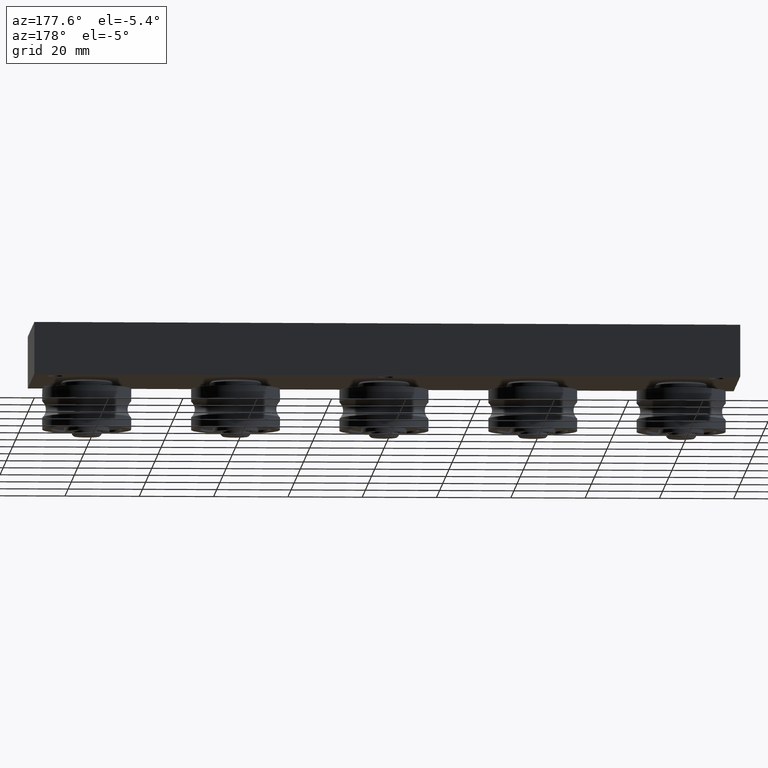
[diagram: clean part render]
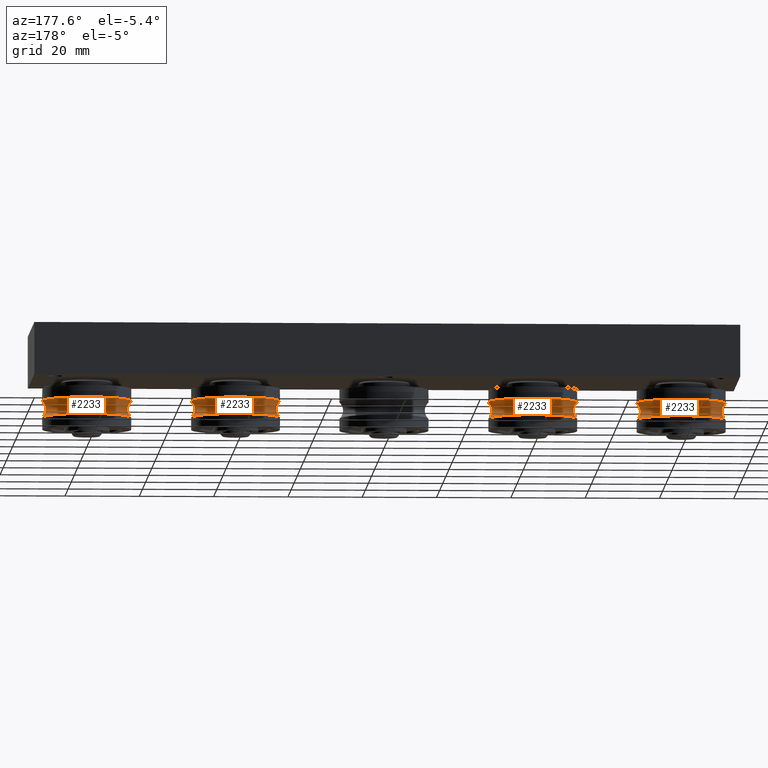
[diagram: same view with one multi-face feature highlighted, each face labeled with its STEP entity id]
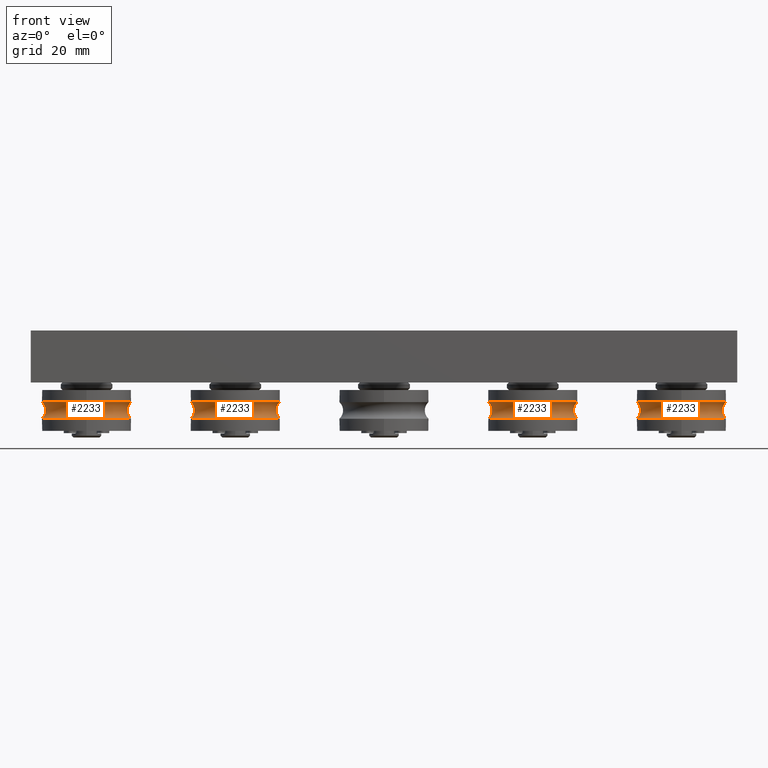
[diagram: same view with one multi-face feature highlighted, each face labeled with its STEP entity id]
A machine part, auxiliary view. The highlighted faces form ONE feature: a constant-radius fillet chain: 4 tangent blend faces with common blend radius 3 mm. The faces share edges in the B-rep.
A second angle (front view) of the same feature is appended — it is thin or edge-on in the first view.
Their STEP definitions:
[1] entity #2233 (Torus):
#99=TOROIDAL_SURFACE('',#2667,14.,3.);
#364=FACE_OUTER_BOUND('',#544,.T.);
#544=EDGE_LOOP('',(#1837,#1838,#1839,#1840,#1841,#1842));
#958=CIRCLE('',#2665,12.);
#959=CIRCLE('',#2666,12.);
#960=CIRCLE('',#2668,3.);
#961=CIRCLE('',#2669,12.);
#962=CIRCLE('',#2670,12.);
#1127=VERTEX_POINT('',#3898);
#1128=VERTEX_POINT('',#3899);
#1129=VERTEX_POINT('',#3904);
#1130=VERTEX_POINT('',#3906);
#1373=EDGE_CURVE('',#1127,#1128,#958,.T.);
#1375=EDGE_CURVE('',#1128,#1127,#959,.T.);
#1376=EDGE_CURVE('',#1128,#1129,#960,.T.);
#1377=EDGE_CURVE('',#1130,#1129,#961,.T.);
#1378=EDGE_CURVE('',#1129,#1130,#962,.T.);
#1837=ORIENTED_EDGE('',*,*,#1373,.T.);
#1838=ORIENTED_EDGE('',*,*,#1376,.T.);
#1839=ORIENTED_EDGE('',*,*,#1377,.F.);
#1840=ORIENTED_EDGE('',*,*,#1378,.F.);
#1841=ORIENTED_EDGE('',*,*,#1376,.F.);
#1842=ORIENTED_EDGE('',*,*,#1375,.T.);
#2233=ADVANCED_FACE('',(#364),#99,.F.);
#2665=AXIS2_PLACEMENT_3D('',#3900,#3216,#3217);
#2666=AXIS2_PLACEMENT_3D('',#3902,#3219,#3220);
#2667=AXIS2_PLACEMENT_3D('',#3903,#3221,#3222);
#2668=AXIS2_PLACEMENT_3D('',#3905,#3223,#3224);
#2669=AXIS2_PLACEMENT_3D('',#3907,#3225,#3226);
#2670=AXIS2_PLACEMENT_3D('',#3908,#3227,#3228);
#3216=DIRECTION('center_axis',(1.,0.,0.));
#3217=DIRECTION('ref_axis',(0.,1.,0.));
#3219=DIRECTION('center_axis',(1.,0.,0.));
#3220=DIRECTION('ref_axis',(0.,1.,0.));
#3221=DIRECTION('center_axis',(1.,0.,0.));
#3222=DIRECTION('ref_axis',(0.,0.,-1.));
#3223=DIRECTION('center_axis',(0.,-1.,-1.22464679914735E-16));
#3224=DIRECTION('ref_axis',(0.,-1.22464679914735E-16,1.));
#3225=DIRECTION('center_axis',(1.,0.,0.));
#3226=DIRECTION('ref_axis',(0.,1.,0.));
#3227=DIRECTION('center_axis',(1.,0.,0.));
#3228=DIRECTION('ref_axis',(0.,1.,0.));
#3898=CARTESIAN_POINT('',(-2.23606797749979,-12.,-1.46957615897682E-15));
#3899=CARTESIAN_POINT('',(-2.23606797749979,-1.46957615897682E-15,12.));
#3900=CARTESIAN_POINT('Origin',(-2.23606797749979,0.,0.));
#3902=CARTESIAN_POINT('Origin',(-2.23606797749979,0.,0.));
#3903=CARTESIAN_POINT('Origin',(0.,0.,0.));
#3904=CARTESIAN_POINT('',(2.23606797749979,-1.46957615897682E-15,12.));
#3905=CARTESIAN_POINT('Origin',(0.,-1.71450551880629E-15,14.));
#3906=CARTESIAN_POINT('',(2.23606797749979,-12.,-1.46957615897682E-15));
#3907=CARTESIAN_POINT('Origin',(2.23606797749979,0.,0.));
#3908=CARTESIAN_POINT('Origin',(2.23606797749979,0.,0.));
[2] entity #2233 (Torus):
#99=TOROIDAL_SURFACE('',#2667,14.,3.);
#364=FACE_OUTER_BOUND('',#544,.T.);
#544=EDGE_LOOP('',(#1837,#1838,#1839,#1840,#1841,#1842));
#958=CIRCLE('',#2665,12.);
#959=CIRCLE('',#2666,12.);
#960=CIRCLE('',#2668,3.);
#961=CIRCLE('',#2669,12.);
#962=CIRCLE('',#2670,12.);
#1127=VERTEX_POINT('',#3898);
#1128=VERTEX_POINT('',#3899);
#1129=VERTEX_POINT('',#3904);
#1130=VERTEX_POINT('',#3906);
#1373=EDGE_CURVE('',#1127,#1128,#958,.T.);
#1375=EDGE_CURVE('',#1128,#1127,#959,.T.);
#1376=EDGE_CURVE('',#1128,#1129,#960,.T.);
#1377=EDGE_CURVE('',#1130,#1129,#961,.T.);
#1378=EDGE_CURVE('',#1129,#1130,#962,.T.);
#1837=ORIENTED_EDGE('',*,*,#1373,.T.);
#1838=ORIENTED_EDGE('',*,*,#1376,.T.);
#1839=ORIENTED_EDGE('',*,*,#1377,.F.);
#1840=ORIENTED_EDGE('',*,*,#1378,.F.);
#1841=ORIENTED_EDGE('',*,*,#1376,.F.);
#1842=ORIENTED_EDGE('',*,*,#1375,.T.);
#2233=ADVANCED_FACE('',(#364),#99,.F.);
#2665=AXIS2_PLACEMENT_3D('',#3900,#3216,#3217);
#2666=AXIS2_PLACEMENT_3D('',#3902,#3219,#3220);
#2667=AXIS2_PLACEMENT_3D('',#3903,#3221,#3222);
#2668=AXIS2_PLACEMENT_3D('',#3905,#3223,#3224);
#2669=AXIS2_PLACEMENT_3D('',#3907,#3225,#3226);
#2670=AXIS2_PLACEMENT_3D('',#3908,#3227,#3228);
#3216=DIRECTION('center_axis',(1.,0.,0.));
#3217=DIRECTION('ref_axis',(0.,1.,0.));
#3219=DIRECTION('center_axis',(1.,0.,0.));
#3220=DIRECTION('ref_axis',(0.,1.,0.));
#3221=DIRECTION('center_axis',(1.,0.,0.));
#3222=DIRECTION('ref_axis',(0.,0.,-1.));
#3223=DIRECTION('center_axis',(0.,-1.,-1.22464679914735E-16));
#3224=DIRECTION('ref_axis',(0.,-1.22464679914735E-16,1.));
#3225=DIRECTION('center_axis',(1.,0.,0.));
#3226=DIRECTION('ref_axis',(0.,1.,0.));
#3227=DIRECTION('center_axis',(1.,0.,0.));
#3228=DIRECTION('ref_axis',(0.,1.,0.));
#3898=CARTESIAN_POINT('',(-2.23606797749979,-12.,-1.46957615897682E-15));
#3899=CARTESIAN_POINT('',(-2.23606797749979,-1.46957615897682E-15,12.));
#3900=CARTESIAN_POINT('Origin',(-2.23606797749979,0.,0.));
#3902=CARTESIAN_POINT('Origin',(-2.23606797749979,0.,0.));
#3903=CARTESIAN_POINT('Origin',(0.,0.,0.));
#3904=CARTESIAN_POINT('',(2.23606797749979,-1.46957615897682E-15,12.));
#3905=CARTESIAN_POINT('Origin',(0.,-1.71450551880629E-15,14.));
#3906=CARTESIAN_POINT('',(2.23606797749979,-12.,-1.46957615897682E-15));
#3907=CARTESIAN_POINT('Origin',(2.23606797749979,0.,0.));
#3908=CARTESIAN_POINT('Origin',(2.23606797749979,0.,0.));
[3] entity #2233 (Torus):
#99=TOROIDAL_SURFACE('',#2667,14.,3.);
#364=FACE_OUTER_BOUND('',#544,.T.);
#544=EDGE_LOOP('',(#1837,#1838,#1839,#1840,#1841,#1842));
#958=CIRCLE('',#2665,12.);
#959=CIRCLE('',#2666,12.);
#960=CIRCLE('',#2668,3.);
#961=CIRCLE('',#2669,12.);
#962=CIRCLE('',#2670,12.);
#1127=VERTEX_POINT('',#3898);
#1128=VERTEX_POINT('',#3899);
#1129=VERTEX_POINT('',#3904);
#1130=VERTEX_POINT('',#3906);
#1373=EDGE_CURVE('',#1127,#1128,#958,.T.);
#1375=EDGE_CURVE('',#1128,#1127,#959,.T.);
#1376=EDGE_CURVE('',#1128,#1129,#960,.T.);
#1377=EDGE_CURVE('',#1130,#1129,#961,.T.);
#1378=EDGE_CURVE('',#1129,#1130,#962,.T.);
#1837=ORIENTED_EDGE('',*,*,#1373,.T.);
#1838=ORIENTED_EDGE('',*,*,#1376,.T.);
#1839=ORIENTED_EDGE('',*,*,#1377,.F.);
#1840=ORIENTED_EDGE('',*,*,#1378,.F.);
#1841=ORIENTED_EDGE('',*,*,#1376,.F.);
#1842=ORIENTED_EDGE('',*,*,#1375,.T.);
#2233=ADVANCED_FACE('',(#364),#99,.F.);
#2665=AXIS2_PLACEMENT_3D('',#3900,#3216,#3217);
#2666=AXIS2_PLACEMENT_3D('',#3902,#3219,#3220);
#2667=AXIS2_PLACEMENT_3D('',#3903,#3221,#3222);
#2668=AXIS2_PLACEMENT_3D('',#3905,#3223,#3224);
#2669=AXIS2_PLACEMENT_3D('',#3907,#3225,#3226);
#2670=AXIS2_PLACEMENT_3D('',#3908,#3227,#3228);
#3216=DIRECTION('center_axis',(1.,0.,0.));
#3217=DIRECTION('ref_axis',(0.,1.,0.));
#3219=DIRECTION('center_axis',(1.,0.,0.));
#3220=DIRECTION('ref_axis',(0.,1.,0.));
#3221=DIRECTION('center_axis',(1.,0.,0.));
#3222=DIRECTION('ref_axis',(0.,0.,-1.));
#3223=DIRECTION('center_axis',(0.,-1.,-1.22464679914735E-16));
#3224=DIRECTION('ref_axis',(0.,-1.22464679914735E-16,1.));
#3225=DIRECTION('center_axis',(1.,0.,0.));
#3226=DIRECTION('ref_axis',(0.,1.,0.));
#3227=DIRECTION('center_axis',(1.,0.,0.));
#3228=DIRECTION('ref_axis',(0.,1.,0.));
#3898=CARTESIAN_POINT('',(-2.23606797749979,-12.,-1.46957615897682E-15));
#3899=CARTESIAN_POINT('',(-2.23606797749979,-1.46957615897682E-15,12.));
#3900=CARTESIAN_POINT('Origin',(-2.23606797749979,0.,0.));
#3902=CARTESIAN_POINT('Origin',(-2.23606797749979,0.,0.));
#3903=CARTESIAN_POINT('Origin',(0.,0.,0.));
#3904=CARTESIAN_POINT('',(2.23606797749979,-1.46957615897682E-15,12.));
#3905=CARTESIAN_POINT('Origin',(0.,-1.71450551880629E-15,14.));
#3906=CARTESIAN_POINT('',(2.23606797749979,-12.,-1.46957615897682E-15));
#3907=CARTESIAN_POINT('Origin',(2.23606797749979,0.,0.));
#3908=CARTESIAN_POINT('Origin',(2.23606797749979,0.,0.));
[4] entity #2233 (Torus):
#99=TOROIDAL_SURFACE('',#2667,14.,3.);
#364=FACE_OUTER_BOUND('',#544,.T.);
#544=EDGE_LOOP('',(#1837,#1838,#1839,#1840,#1841,#1842));
#958=CIRCLE('',#2665,12.);
#959=CIRCLE('',#2666,12.);
#960=CIRCLE('',#2668,3.);
#961=CIRCLE('',#2669,12.);
#962=CIRCLE('',#2670,12.);
#1127=VERTEX_POINT('',#3898);
#1128=VERTEX_POINT('',#3899);
#1129=VERTEX_POINT('',#3904);
#1130=VERTEX_POINT('',#3906);
#1373=EDGE_CURVE('',#1127,#1128,#958,.T.);
#1375=EDGE_CURVE('',#1128,#1127,#959,.T.);
#1376=EDGE_CURVE('',#1128,#1129,#960,.T.);
#1377=EDGE_CURVE('',#1130,#1129,#961,.T.);
#1378=EDGE_CURVE('',#1129,#1130,#962,.T.);
#1837=ORIENTED_EDGE('',*,*,#1373,.T.);
#1838=ORIENTED_EDGE('',*,*,#1376,.T.);
#1839=ORIENTED_EDGE('',*,*,#1377,.F.);
#1840=ORIENTED_EDGE('',*,*,#1378,.F.);
#1841=ORIENTED_EDGE('',*,*,#1376,.F.);
#1842=ORIENTED_EDGE('',*,*,#1375,.T.);
#2233=ADVANCED_FACE('',(#364),#99,.F.);
#2665=AXIS2_PLACEMENT_3D('',#3900,#3216,#3217);
#2666=AXIS2_PLACEMENT_3D('',#3902,#3219,#3220);
#2667=AXIS2_PLACEMENT_3D('',#3903,#3221,#3222);
#2668=AXIS2_PLACEMENT_3D('',#3905,#3223,#3224);
#2669=AXIS2_PLACEMENT_3D('',#3907,#3225,#3226);
#2670=AXIS2_PLACEMENT_3D('',#3908,#3227,#3228);
#3216=DIRECTION('center_axis',(1.,0.,0.));
#3217=DIRECTION('ref_axis',(0.,1.,0.));
#3219=DIRECTION('center_axis',(1.,0.,0.));
#3220=DIRECTION('ref_axis',(0.,1.,0.));
#3221=DIRECTION('center_axis',(1.,0.,0.));
#3222=DIRECTION('ref_axis',(0.,0.,-1.));
#3223=DIRECTION('center_axis',(0.,-1.,-1.22464679914735E-16));
#3224=DIRECTION('ref_axis',(0.,-1.22464679914735E-16,1.));
#3225=DIRECTION('center_axis',(1.,0.,0.));
#3226=DIRECTION('ref_axis',(0.,1.,0.));
#3227=DIRECTION('center_axis',(1.,0.,0.));
#3228=DIRECTION('ref_axis',(0.,1.,0.));
#3898=CARTESIAN_POINT('',(-2.23606797749979,-12.,-1.46957615897682E-15));
#3899=CARTESIAN_POINT('',(-2.23606797749979,-1.46957615897682E-15,12.));
#3900=CARTESIAN_POINT('Origin',(-2.23606797749979,0.,0.));
#3902=CARTESIAN_POINT('Origin',(-2.23606797749979,0.,0.));
#3903=CARTESIAN_POINT('Origin',(0.,0.,0.));
#3904=CARTESIAN_POINT('',(2.23606797749979,-1.46957615897682E-15,12.));
#3905=CARTESIAN_POINT('Origin',(0.,-1.71450551880629E-15,14.));
#3906=CARTESIAN_POINT('',(2.23606797749979,-12.,-1.46957615897682E-15));
#3907=CARTESIAN_POINT('Origin',(2.23606797749979,0.,0.));
#3908=CARTESIAN_POINT('Origin',(2.23606797749979,0.,0.));